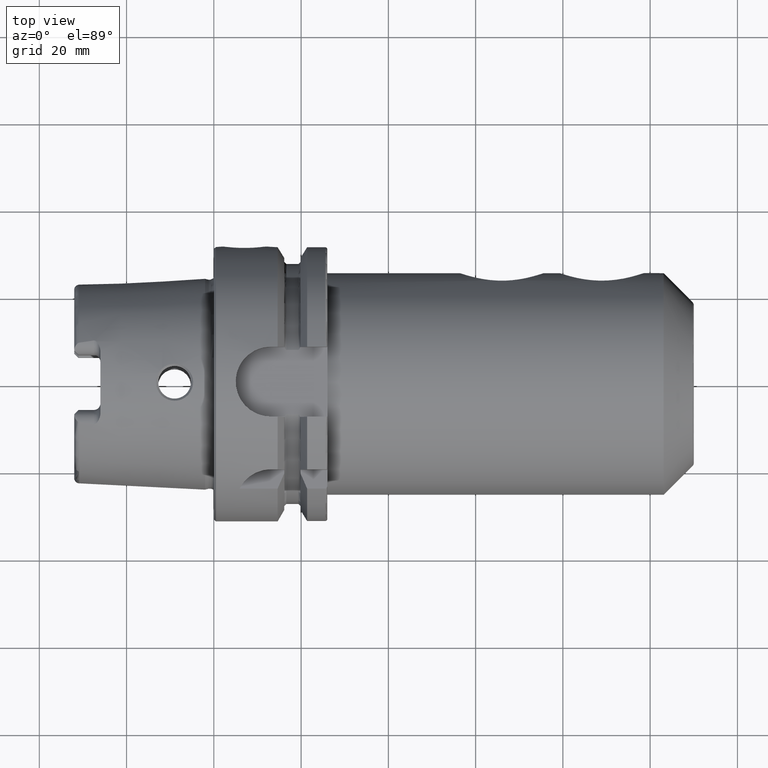
[diagram: clean part render]
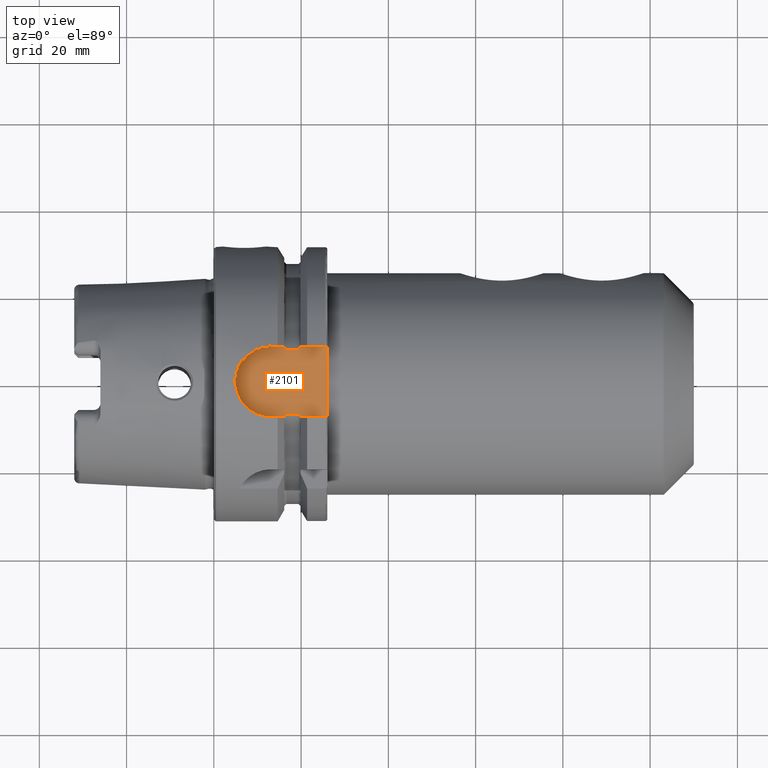
[diagram: same view with one face highlighted and labeled with its STEP entity id]
A machine part, top view. The second image highlights one B-rep face of the part: STEP entity #2101.
In plain terms, the highlighted planar face has unit normal (0, 0, 1).
Its self-contained STEP definition (entity closure, byte-faithful):
#60=PLANE('',#2324);
#163=B_SPLINE_CURVE_WITH_KNOTS('',3,(#4625,#4626,#4627,#4628,#4629,#4630,
#4631,#4632,#4633,#4634),.UNSPECIFIED.,.F.,.F.,(4,2,2,2,4),(0.252714277572707,
0.289228035148658,0.316691561230897,0.323545183976989,0.328785692776271),
 .UNSPECIFIED.);
#164=B_SPLINE_CURVE_WITH_KNOTS('',3,(#4640,#4641,#4642,#4643,#4644,#4645,
#4646,#4647,#4648,#4649),.UNSPECIFIED.,.F.,.F.,(4,2,2,2,4),(0.328785692776271,
0.334026201575553,0.340879824321645,0.368343350403883,0.404857107979834),
 .UNSPECIFIED.);
#167=B_SPLINE_CURVE_WITH_KNOTS('',3,(#4694,#4695,#4696,#4697,#4698,#4699,
#4700,#4701,#4702,#4703),.UNSPECIFIED.,.F.,.F.,(4,2,2,2,4),(0.32878569277627,
0.334026201575551,0.340879824321645,0.368343350403882,0.404857107979833),
 .UNSPECIFIED.);
#170=B_SPLINE_CURVE_WITH_KNOTS('',3,(#4720,#4721,#4722,#4723,#4724,#4725,
#4726,#4727,#4728,#4729),.UNSPECIFIED.,.F.,.F.,(4,2,2,2,4),(0.252714277572707,
0.289228035148658,0.316691561230896,0.323545183976989,0.32878569277627),
 .UNSPECIFIED.);
#306=FACE_OUTER_BOUND('',#439,.T.);
#439=EDGE_LOOP('',(#1790,#1791,#1792,#1793,#1794,#1795,#1796,#1797,#1798,
#1799,#1800,#1801));
#568=LINE('',#4614,#680);
#571=LINE('',#4679,#683);
#572=LINE('',#4684,#684);
#574=LINE('',#4733,#686);
#575=LINE('',#4736,#687);
#579=LINE('',#4768,#691);
#581=LINE('',#4771,#693);
#680=VECTOR('',#2755,10.);
#683=VECTOR('',#2784,10.);
#684=VECTOR('',#2791,10.);
#686=VECTOR('',#2809,10.);
#687=VECTOR('',#2812,10.);
#691=VECTOR('',#2822,10.);
#693=VECTOR('',#2826,10.);
#782=CIRCLE('',#2321,8.);
#991=VERTEX_POINT('',#4611);
#992=VERTEX_POINT('',#4613);
#993=VERTEX_POINT('',#4617);
#994=VERTEX_POINT('',#4624);
#995=VERTEX_POINT('',#4637);
#996=VERTEX_POINT('',#4639);
#999=VERTEX_POINT('',#4678);
#1000=VERTEX_POINT('',#4682);
#1002=VERTEX_POINT('',#4693);
#1004=VERTEX_POINT('',#4713);
#1005=VERTEX_POINT('',#4735);
#1009=VERTEX_POINT('',#4764);
#1258=EDGE_CURVE('',#991,#992,#568,.T.);
#1261=EDGE_CURVE('',#993,#994,#163,.T.);
#1264=EDGE_CURVE('',#995,#996,#164,.T.);
#1272=EDGE_CURVE('',#994,#999,#571,.T.);
#1275=EDGE_CURVE('',#1000,#995,#572,.T.);
#1278=EDGE_CURVE('',#999,#1002,#167,.T.);
#1282=EDGE_CURVE('',#1004,#1000,#170,.T.);
#1284=EDGE_CURVE('',#1004,#992,#574,.T.);
#1285=EDGE_CURVE('',#1005,#996,#575,.T.);
#1290=EDGE_CURVE('',#1009,#1005,#782,.T.);
#1292=EDGE_CURVE('',#991,#1002,#579,.T.);
#1294=EDGE_CURVE('',#993,#1009,#581,.T.);
#1790=ORIENTED_EDGE('',*,*,#1264,.F.);
#1791=ORIENTED_EDGE('',*,*,#1275,.F.);
#1792=ORIENTED_EDGE('',*,*,#1282,.F.);
#1793=ORIENTED_EDGE('',*,*,#1284,.T.);
#1794=ORIENTED_EDGE('',*,*,#1258,.F.);
#1795=ORIENTED_EDGE('',*,*,#1292,.T.);
#1796=ORIENTED_EDGE('',*,*,#1278,.F.);
#1797=ORIENTED_EDGE('',*,*,#1272,.F.);
#1798=ORIENTED_EDGE('',*,*,#1261,.F.);
#1799=ORIENTED_EDGE('',*,*,#1294,.T.);
#1800=ORIENTED_EDGE('',*,*,#1290,.T.);
#1801=ORIENTED_EDGE('',*,*,#1285,.T.);
#2101=ADVANCED_FACE('',(#306),#60,.T.);
#2321=AXIS2_PLACEMENT_3D('',#4765,#2817,#2818);
#2324=AXIS2_PLACEMENT_3D('',#4772,#2827,#2828);
#2755=DIRECTION('',(0.,-1.,0.));
#2784=DIRECTION('',(1.,0.,0.));
#2791=DIRECTION('',(-1.,0.,0.));
#2809=DIRECTION('',(1.,3.41607084500048E-16,0.));
#2812=DIRECTION('',(1.,3.41607084500048E-16,0.));
#2817=DIRECTION('center_axis',(0.,0.,1.));
#2818=DIRECTION('ref_axis',(0.,1.,0.));
#2822=DIRECTION('',(-1.,-2.56205313375036E-16,0.));
#2826=DIRECTION('',(-1.,-2.56205313375036E-16,0.));
#2827=DIRECTION('center_axis',(0.,0.,1.));
#2828=DIRECTION('ref_axis',(1.,0.,0.));
#4611=CARTESIAN_POINT('',(26.,8.,26.5));
#4613=CARTESIAN_POINT('',(26.,-8.,26.5));
#4614=CARTESIAN_POINT('',(26.,5.55111512312578E-16,26.5));
#4617=CARTESIAN_POINT('',(16.2397987608563,8.,26.5));
#4624=CARTESIAN_POINT('',(16.625,7.34846922834952,26.5));
#4625=CARTESIAN_POINT('Ctrl Pts',(16.2397987608563,8.,26.5));
#4626=CARTESIAN_POINT('Ctrl Pts',(16.2699372185845,7.87398729043679,26.5));
#4627=CARTESIAN_POINT('Ctrl Pts',(16.3063113289614,7.75248496685372,26.5));
#4628=CARTESIAN_POINT('Ctrl Pts',(16.3906456489289,7.5566112023157,26.5));
#4629=CARTESIAN_POINT('Ctrl Pts',(16.4411490019356,7.4590543697872,26.5));
#4630=CARTESIAN_POINT('Ctrl Pts',(16.5270295504762,7.38349170057081,26.5));
#4631=CARTESIAN_POINT('Ctrl Pts',(16.5496994821687,7.36807649661538,26.5));
#4632=CARTESIAN_POINT('Ctrl Pts',(16.587038394856,7.35287762173868,26.5));
#4633=CARTESIAN_POINT('Ctrl Pts',(16.6075316373357,7.34846922834952,26.5));
#4634=CARTESIAN_POINT('Ctrl Pts',(16.625,7.34846922834952,26.5));
#4637=CARTESIAN_POINT('',(16.625,-7.34846922834952,26.5));
#4639=CARTESIAN_POINT('',(16.2397987608563,-8.,26.5));
#4640=CARTESIAN_POINT('Ctrl Pts',(16.625,-7.34846922834952,26.5));
#4641=CARTESIAN_POINT('Ctrl Pts',(16.6075316373357,-7.34846922834952,26.5));
#4642=CARTESIAN_POINT('Ctrl Pts',(16.587038394856,-7.35287762173868,26.5));
#4643=CARTESIAN_POINT('Ctrl Pts',(16.5496994821687,-7.36807649661538,26.5));
#4644=CARTESIAN_POINT('Ctrl Pts',(16.5270295504762,-7.38349170057081,26.5));
#4645=CARTESIAN_POINT('Ctrl Pts',(16.4411490019356,-7.4590543697872,26.5));
#4646=CARTESIAN_POINT('Ctrl Pts',(16.3906456489289,-7.5566112023157,26.5));
#4647=CARTESIAN_POINT('Ctrl Pts',(16.3063113289614,-7.75248496685372,26.5));
#4648=CARTESIAN_POINT('Ctrl Pts',(16.2699372185845,-7.87398729043679,26.5));
#4649=CARTESIAN_POINT('Ctrl Pts',(16.2397987608563,-8.,26.5));
#4678=CARTESIAN_POINT('',(19.375,7.34846922834952,26.5));
#4679=CARTESIAN_POINT('',(18.,7.34846922834952,26.5));
#4682=CARTESIAN_POINT('',(19.375,-7.34846922834952,26.5));
#4684=CARTESIAN_POINT('',(18.,-7.34846922834952,26.5));
#4693=CARTESIAN_POINT('',(19.7602012391437,8.,26.5));
#4694=CARTESIAN_POINT('Ctrl Pts',(19.375,7.34846922834952,26.5));
#4695=CARTESIAN_POINT('Ctrl Pts',(19.3924683626643,7.34846922834952,26.5));
#4696=CARTESIAN_POINT('Ctrl Pts',(19.412961605144,7.35287762173868,26.5));
#4697=CARTESIAN_POINT('Ctrl Pts',(19.4503005178313,7.36807649661538,26.5));
#4698=CARTESIAN_POINT('Ctrl Pts',(19.4729704495238,7.38349170057082,26.5));
#4699=CARTESIAN_POINT('Ctrl Pts',(19.5588509980644,7.45905436978721,26.5));
#4700=CARTESIAN_POINT('Ctrl Pts',(19.6093543510711,7.5566112023157,26.5));
#4701=CARTESIAN_POINT('Ctrl Pts',(19.6936886710386,7.75248496685372,26.5));
#4702=CARTESIAN_POINT('Ctrl Pts',(19.7300627814155,7.87398729043679,26.5));
#4703=CARTESIAN_POINT('Ctrl Pts',(19.7602012391437,8.,26.5));
#4713=CARTESIAN_POINT('',(19.7602012391437,-8.,26.5));
#4720=CARTESIAN_POINT('Ctrl Pts',(19.7602012391436,-8.,26.5));
#4721=CARTESIAN_POINT('Ctrl Pts',(19.7300627814155,-7.87398729043679,26.5));
#4722=CARTESIAN_POINT('Ctrl Pts',(19.6936886710386,-7.75248496685372,26.5));
#4723=CARTESIAN_POINT('Ctrl Pts',(19.6093543510711,-7.5566112023157,26.5));
#4724=CARTESIAN_POINT('Ctrl Pts',(19.5588509980644,-7.45905436978721,26.5));
#4725=CARTESIAN_POINT('Ctrl Pts',(19.4729704495238,-7.38349170057082,26.5));
#4726=CARTESIAN_POINT('Ctrl Pts',(19.4503005178313,-7.36807649661538,26.5));
#4727=CARTESIAN_POINT('Ctrl Pts',(19.412961605144,-7.35287762173868,26.5));
#4728=CARTESIAN_POINT('Ctrl Pts',(19.3924683626643,-7.34846922834952,26.5));
#4729=CARTESIAN_POINT('Ctrl Pts',(19.375,-7.34846922834952,26.5));
#4733=CARTESIAN_POINT('',(13.,-8.,26.5));
#4735=CARTESIAN_POINT('',(13.,-8.,26.5));
#4736=CARTESIAN_POINT('',(13.,-8.,26.5));
#4764=CARTESIAN_POINT('',(13.,8.,26.5));
#4765=CARTESIAN_POINT('Origin',(13.,0.,26.5));
#4768=CARTESIAN_POINT('',(26.,8.,26.5));
#4771=CARTESIAN_POINT('',(26.,8.,26.5));
#4772=CARTESIAN_POINT('Origin',(15.5,1.11022302462516E-15,26.5));